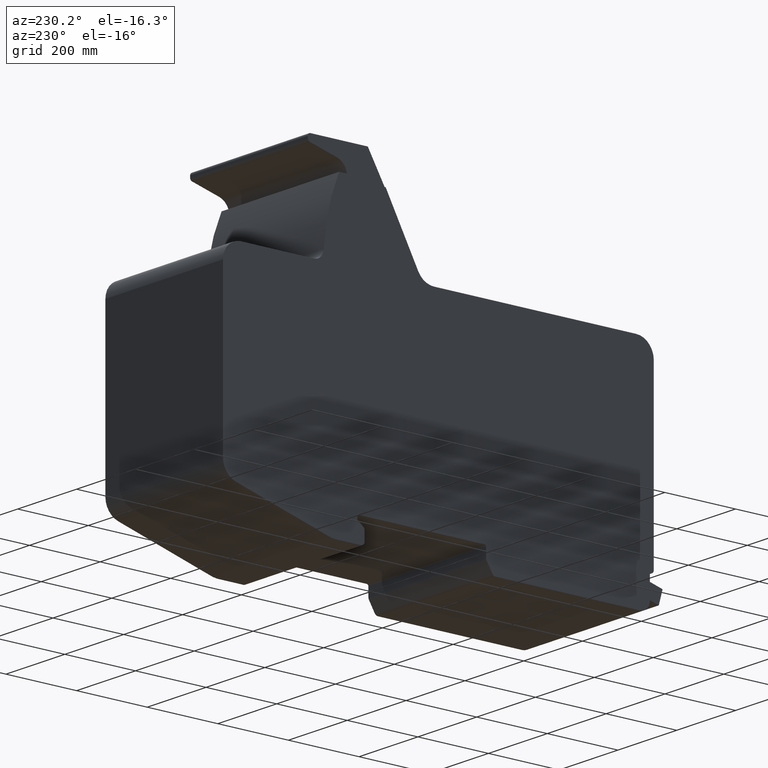
[diagram: clean part render]
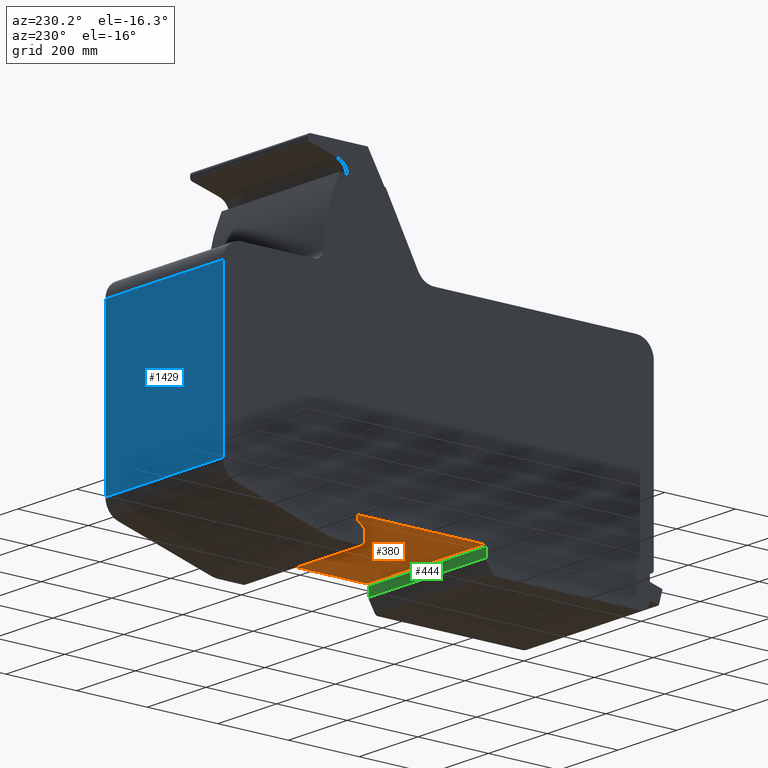
[diagram: same view with three faces highlighted in distinct colors, each labeled with its STEP entity id]
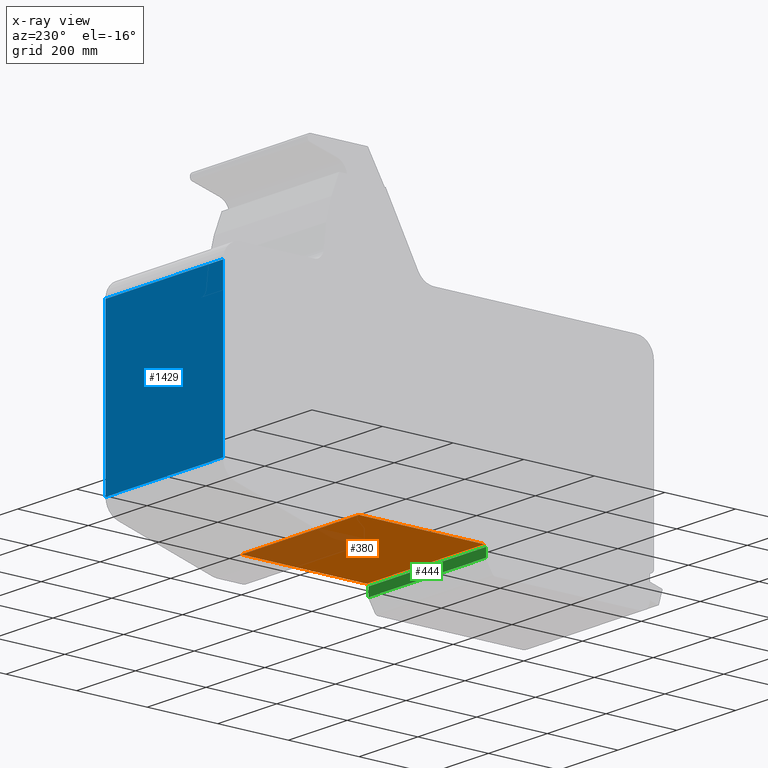
[diagram: x-ray of the same camera — body ghosted, the three highlighted faces saturated]
A machine part, auxiliary view with three faces highlighted in distinct colors.
The next image is the same camera in x-ray (body ghosted, the three faces saturated) — at least one of them is partly hidden behind the body in this view.
Their STEP definitions:

[orange] entity #380 — the highlighted planar face has unit normal (0, 0, -1).
#322=CARTESIAN_POINT('',(400.0,0.0,0.0));
#323=VERTEX_POINT('',#322);
#331=CARTESIAN_POINT('',(0.0,0.0,0.0));
#332=VERTEX_POINT('',#331);
#333=CARTESIAN_POINT('',(0.0,0.0,0.0));
#334=DIRECTION('',(1.0,0.0,0.0));
#335=VECTOR('',#334,400.0);
#336=LINE('',#333,#335);
#337=EDGE_CURVE('',#332,#323,#336,.T.);
#350=CARTESIAN_POINT('',(0.0,0.0,0.0));
#351=DIRECTION('',(0.0,0.0,-1.0));
#352=DIRECTION('',(-1.0,0.0,0.0));
#353=AXIS2_PLACEMENT_3D('',#350,#351,#352);
#354=PLANE('',#353);
#355=CARTESIAN_POINT('',(400.0,-355.00000000000006,1.909584E-013));
#356=VERTEX_POINT('',#355);
#357=CARTESIAN_POINT('',(400.0,0.0,2.524355E-029));
#358=DIRECTION('',(0.0,-1.0,0.0));
#359=VECTOR('',#358,355.00000000000006);
#360=LINE('',#357,#359);
#361=EDGE_CURVE('',#323,#356,#360,.T.);
#362=ORIENTED_EDGE('',*,*,#361,.T.);
#363=CARTESIAN_POINT('',(0.0,-355.00000000000006,1.909584E-013));
#364=VERTEX_POINT('',#363);
#365=CARTESIAN_POINT('',(0.0,-355.00000000000006,1.909584E-013));
#366=DIRECTION('',(1.0,0.0,0.0));
#367=VECTOR('',#366,400.0);
#368=LINE('',#365,#367);
#369=EDGE_CURVE('',#364,#356,#368,.T.);
#370=ORIENTED_EDGE('',*,*,#369,.F.);
#371=CARTESIAN_POINT('',(0.0,-355.00000000000006,1.909584E-013));
#372=DIRECTION('',(0.0,1.0,0.0));
#373=VECTOR('',#372,355.00000000000006);
#374=LINE('',#371,#373);
#375=EDGE_CURVE('',#364,#332,#374,.T.);
#376=ORIENTED_EDGE('',*,*,#375,.T.);
#377=ORIENTED_EDGE('',*,*,#337,.T.);
#378=EDGE_LOOP('',(#362,#370,#376,#377));
#379=FACE_OUTER_BOUND('',#378,.T.);
#380=ADVANCED_FACE('',(#379),#354,.T.);

[blue] entity #1429 — the highlighted planar face has unit normal (0, 1, 0).
#1371=CARTESIAN_POINT('',(400.0,384.99999999999989,507.50000000000023));
#1372=VERTEX_POINT('',#1371);
#1380=CARTESIAN_POINT('',(0.0,384.99999999999989,507.50000000000023));
#1381=VERTEX_POINT('',#1380);
#1382=CARTESIAN_POINT('',(0.0,384.99999999999989,507.50000000000023));
#1383=DIRECTION('',(1.0,0.0,0.0));
#1384=VECTOR('',#1383,400.0);
#1385=LINE('',#1382,#1384);
#1386=EDGE_CURVE('',#1381,#1372,#1385,.T.);
#1399=CARTESIAN_POINT('',(0.0,384.99999999999989,507.50000000000023));
#1400=DIRECTION('',(0.0,1.0,0.0));
#1401=DIRECTION('',(0.0,0.0,1.0));
#1402=AXIS2_PLACEMENT_3D('',#1399,#1400,#1401);
#1403=PLANE('',#1402);
#1404=CARTESIAN_POINT('',(400.0,385.0,58.281992166299986));
#1405=VERTEX_POINT('',#1404);
#1406=CARTESIAN_POINT('',(400.0,384.99999999999989,507.50000000000023));
#1407=DIRECTION('',(0.0,0.0,-1.0));
#1408=VECTOR('',#1407,449.21800783370026);
#1409=LINE('',#1406,#1408);
#1410=EDGE_CURVE('',#1372,#1405,#1409,.T.);
#1411=ORIENTED_EDGE('',*,*,#1410,.T.);
#1412=CARTESIAN_POINT('',(0.0,385.0,58.281992166299986));
#1413=VERTEX_POINT('',#1412);
#1414=CARTESIAN_POINT('',(0.0,385.0,58.281992166299986));
#1415=DIRECTION('',(1.0,0.0,0.0));
#1416=VECTOR('',#1415,400.0);
#1417=LINE('',#1414,#1416);
#1418=EDGE_CURVE('',#1413,#1405,#1417,.T.);
#1419=ORIENTED_EDGE('',*,*,#1418,.F.);
#1420=CARTESIAN_POINT('',(0.0,385.0,58.281992166299986));
#1421=DIRECTION('',(0.0,0.0,1.0));
#1422=VECTOR('',#1421,449.21800783370026);
#1423=LINE('',#1420,#1422);
#1424=EDGE_CURVE('',#1413,#1381,#1423,.T.);
#1425=ORIENTED_EDGE('',*,*,#1424,.T.);
#1426=ORIENTED_EDGE('',*,*,#1386,.T.);
#1427=EDGE_LOOP('',(#1411,#1419,#1425,#1426));
#1428=FACE_OUTER_BOUND('',#1427,.T.);
#1429=ADVANCED_FACE('',(#1428),#1403,.T.);

[green] entity #444 — the highlighted planar face has unit normal (0, 1, 0).
#386=CARTESIAN_POINT('',(400.0,-360.0,-5.0));
#387=VERTEX_POINT('',#386);
#395=CARTESIAN_POINT('',(0.0,-360.0,-5.0));
#396=VERTEX_POINT('',#395);
#397=CARTESIAN_POINT('',(0.0,-360.0,-5.0));
#398=DIRECTION('',(1.0,0.0,0.0));
#399=VECTOR('',#398,400.0);
#400=LINE('',#397,#399);
#401=EDGE_CURVE('',#396,#387,#400,.T.);
#414=CARTESIAN_POINT('',(0.0,-360.0,-5.0));
#415=DIRECTION('',(0.0,1.0,0.0));
#416=DIRECTION('',(0.0,0.0,1.0));
#417=AXIS2_PLACEMENT_3D('',#414,#415,#416);
#418=PLANE('',#417);
#419=CARTESIAN_POINT('',(400.0,-360.00000000000006,-29.730160350499609));
#420=VERTEX_POINT('',#419);
#421=CARTESIAN_POINT('',(400.0,-360.0,-5.0));
#422=DIRECTION('',(0.0,0.0,-1.0));
#423=VECTOR('',#422,24.730160350499609);
#424=LINE('',#421,#423);
#425=EDGE_CURVE('',#387,#420,#424,.T.);
#426=ORIENTED_EDGE('',*,*,#425,.T.);
#427=CARTESIAN_POINT('',(0.0,-360.00000000000006,-29.730160350499609));
#428=VERTEX_POINT('',#427);
#429=CARTESIAN_POINT('',(0.0,-360.00000000000006,-29.730160350499609));
#430=DIRECTION('',(1.0,0.0,0.0));
#431=VECTOR('',#430,400.0);
#432=LINE('',#429,#431);
#433=EDGE_CURVE('',#428,#420,#432,.T.);
#434=ORIENTED_EDGE('',*,*,#433,.F.);
#435=CARTESIAN_POINT('',(0.0,-360.00000000000006,-29.730160350499609));
#436=DIRECTION('',(0.0,0.0,1.0));
#437=VECTOR('',#436,24.730160350499609);
#438=LINE('',#435,#437);
#439=EDGE_CURVE('',#428,#396,#438,.T.);
#440=ORIENTED_EDGE('',*,*,#439,.T.);
#441=ORIENTED_EDGE('',*,*,#401,.T.);
#442=EDGE_LOOP('',(#426,#434,#440,#441));
#443=FACE_OUTER_BOUND('',#442,.T.);
#444=ADVANCED_FACE('',(#443),#418,.T.);